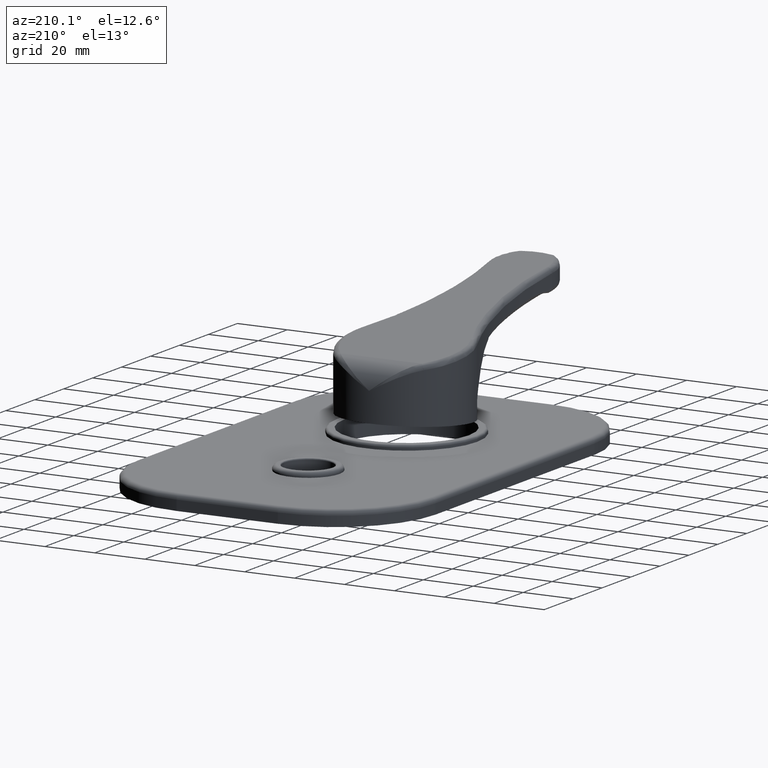
[diagram: clean part render]
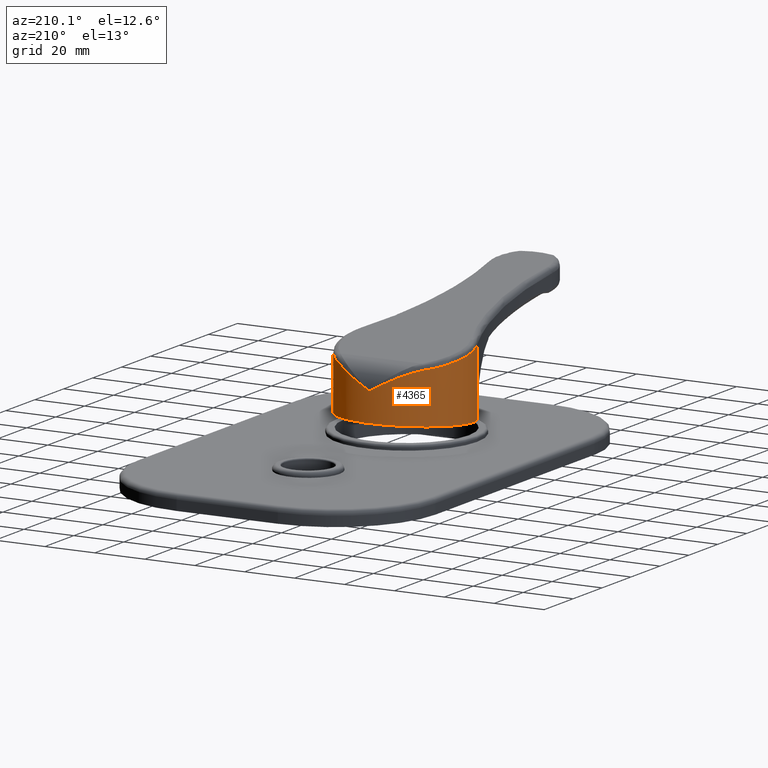
[diagram: same view with one face highlighted and labeled with its STEP entity id]
A machine part, auxiliary view. The second image highlights one B-rep face of the part: STEP entity #4365.
In plain terms, the highlighted cylindrical surface (partial cylindrical patch) has radius 25 mm, axis along (0, 0, 1).
Its self-contained STEP definition (entity closure, byte-faithful):
#594=CARTESIAN_POINT('',(0.E0,-2.5E1,6.3E0));
#595=CARTESIAN_POINT('',(-9.552643571929E-2,-2.5E1,6.3E0));
#596=CARTESIAN_POINT('',(-2.863583844922E-1,-2.499890686269E1,
6.305809344044E0));
#597=CARTESIAN_POINT('',(-5.726246135889E-1,-2.499398531317E1,
6.332058221227E0));
#598=CARTESIAN_POINT('',(-8.567163109883E-1,-2.498584865356E1,
6.375770643688E0));
#599=CARTESIAN_POINT('',(-1.137245276153E0,-2.497464077862E1,6.436643391130E0));
#600=CARTESIAN_POINT('',(-1.414690154978E0,-2.496044904935E1,6.514865119292E0));
#601=CARTESIAN_POINT('',(-1.687264418877E0,-2.494348464778E1,6.610139890455E0));
#602=CARTESIAN_POINT('',(-1.953178547106E0,-2.492404947775E1,6.721813293023E0));
#603=CARTESIAN_POINT('',(-2.212679671748E0,-2.490233038755E1,6.850050806764E0));
#604=CARTESIAN_POINT('',(-2.464488367030E0,-2.487864302561E1,6.994455925738E0));
#605=CARTESIAN_POINT('',(-2.706823859600E0,-2.485341192191E1,7.154074682008E0));
#606=CARTESIAN_POINT('',(-2.938927635325E0,-2.482700383352E1,7.328369254307E0));
#607=CARTESIAN_POINT('',(-3.160557260190E0,-2.479973090381E1,7.517302598208E0));
#608=CARTESIAN_POINT('',(-3.369992454785E0,-2.477210327282E1,7.719557842672E0));
#609=CARTESIAN_POINT('',(-3.566034594417E0,-2.474460766255E1,7.933806018663E0));
#610=CARTESIAN_POINT('',(-3.748903632286E0,-2.471752943433E1,8.160283024869E0));
#611=CARTESIAN_POINT('',(-3.917280046093E0,-2.469136936155E1,8.397503531182E0));
#612=CARTESIAN_POINT('',(-4.070047552427E0,-2.466661513507E1,8.643598167916E0));
#613=CARTESIAN_POINT('',(-4.207354530989E0,-2.464353673757E1,8.898541626792E0));
#614=CARTESIAN_POINT('',(-4.328688281555E0,-2.462248638389E1,9.161431863445E0));
#615=CARTESIAN_POINT('',(-4.433341277604E0,-2.460383417262E1,9.430547447383E0));
#616=CARTESIAN_POINT('',(-4.521147082969E0,-2.458783002328E1,9.705031338806E0));
#617=CARTESIAN_POINT('',(-4.592036304289E0,-2.457467237332E1,9.984679867718E0));
#618=CARTESIAN_POINT('',(-4.645455571616E0,-2.456461699869E1,1.026710642309E1));
#619=CARTESIAN_POINT('',(-4.681336852553E0,-2.455779587569E1,1.055052243391E1));
#620=CARTESIAN_POINT('',(-4.699909597008E0,-2.455424223801E1,1.083356538011E1));
#621=CARTESIAN_POINT('',(-4.701358763900E0,-2.455396981037E1,1.111719296996E1));
#622=CARTESIAN_POINT('',(-4.691111753376E0,-2.455591759400E1,1.130357685549E1));
#623=CARTESIAN_POINT('',(-4.683265686537E0,-2.455741389571E1,1.139626062082E1));
#625=CARTESIAN_POINT('',(4.683277608627E0,-2.455742015242E1,1.139611972935E1));
#626=CARTESIAN_POINT('',(4.691309685503E0,-2.455588837707E1,1.130116016073E1));
#627=CARTESIAN_POINT('',(4.701605367331E0,-2.455391857512E1,1.111100412543E1));
#628=CARTESIAN_POINT('',(4.699603203663E0,-2.455430204286E1,1.082353697259E1));
#629=CARTESIAN_POINT('',(4.680188872171E0,-2.455801473733E1,1.053847192194E1));
#630=CARTESIAN_POINT('',(4.643470455615E0,-2.456499289894E1,1.025463503067E1));
#631=CARTESIAN_POINT('',(4.589362555389E0,-2.457517234412E1,9.972727912436E0));
#632=CARTESIAN_POINT('',(4.517993894657E0,-2.458841004075E1,9.694149691644E0));
#633=CARTESIAN_POINT('',(4.429859840694E0,-2.460446167973E1,9.420795142178E0));
#634=CARTESIAN_POINT('',(4.324844616569E0,-2.462316237535E1,9.152432459390E0));
#635=CARTESIAN_POINT('',(4.203164613737E0,-2.464425228476E1,8.890193511151E0));
#636=CARTESIAN_POINT('',(4.065562832044E0,-2.466735524202E1,8.635885660569E0));
#637=CARTESIAN_POINT('',(3.912564311166E0,-2.469211744058E1,8.390436576871E0));
#638=CARTESIAN_POINT('',(3.744072139736E0,-2.471826186873E1,8.153934973245E0));
#639=CARTESIAN_POINT('',(3.561195034669E0,-2.474530453649E1,7.928204611603E0));
#640=CARTESIAN_POINT('',(3.365204186856E0,-2.477275399718E1,7.714661605429E0));
#641=CARTESIAN_POINT('',(3.155855861284E0,-2.480032925324E1,7.513056140342E0));
#642=CARTESIAN_POINT('',(2.934387099182E0,-2.482754024955E1,7.324753938566E0));
#643=CARTESIAN_POINT('',(2.702519106292E0,-2.485387958565E1,7.151061700266E0));
#644=CARTESIAN_POINT('',(2.460435478317E0,-2.487904321813E1,6.991977437221E0));
#645=CARTESIAN_POINT('',(2.208954152767E0,-2.490265985752E1,6.848079458426E0));
#646=CARTESIAN_POINT('',(1.949841007905E0,-2.492430939290E1,6.720303192687E0));
#647=CARTESIAN_POINT('',(1.684327180178E0,-2.494368165194E1,6.609023407197E0));
#648=CARTESIAN_POINT('',(1.412190631333E0,-2.496058889626E1,6.514088859156E0));
#649=CARTESIAN_POINT('',(1.135218639360E0,-2.497473116974E1,6.436149939841E0));
#650=CARTESIAN_POINT('',(8.551801346453E-1,-2.498589941970E1,6.375497020930E0));
#651=CARTESIAN_POINT('',(5.715860282316E-1,-2.499400715241E1,6.331941578789E0));
#652=CARTESIAN_POINT('',(2.858368441224E-1,-2.499891084516E1,6.305788199329E0));
#653=CARTESIAN_POINT('',(9.535166764944E-2,-2.5E1,6.3E0));
#654=CARTESIAN_POINT('',(0.E0,-2.5E1,6.3E0));
#656=CARTESIAN_POINT('',(4.683277608627E0,-2.455742015242E1,1.139611972935E1));
#657=CARTESIAN_POINT('',(5.013514053010E0,-2.449443969788E1,1.138016311499E1));
#658=CARTESIAN_POINT('',(5.671744904150E0,-2.435510448821E1,1.134487414922E1));
#659=CARTESIAN_POINT('',(6.650680177422E0,-2.410619840878E1,1.128177046201E1));
#660=CARTESIAN_POINT('',(7.619715225196E0,-2.381766179792E1,1.120866025335E1));
#661=CARTESIAN_POINT('',(8.577309264328E0,-2.348981892196E1,1.112560409348E1));
#662=CARTESIAN_POINT('',(9.521943008932E0,-2.312304609730E1,1.103263329655E1));
#663=CARTESIAN_POINT('',(1.045210736445E1,-2.271776871123E1,1.092991289567E1));
#664=CARTESIAN_POINT('',(1.136628810384E1,-2.227446954471E1,1.081762229749E1));
#665=CARTESIAN_POINT('',(1.226290973615E1,-2.179372585293E1,1.069577750718E1));
#666=CARTESIAN_POINT('',(1.314043780438E1,-2.127616762450E1,1.056458578042E1));
#667=CARTESIAN_POINT('',(1.399735753180E1,-2.072248517663E1,1.042430214515E1));
#668=CARTESIAN_POINT('',(1.483217043859E1,-2.013343355359E1,1.027505244193E1));
#669=CARTESIAN_POINT('',(1.564340788748E1,-1.950982496591E1,1.011698077193E1));
#670=CARTESIAN_POINT('',(1.642964750332E1,-1.885251351123E1,9.950395114671E0));
#671=CARTESIAN_POINT('',(1.718949439195E1,-1.816240681184E1,9.775582281830E0));
#672=CARTESIAN_POINT('',(1.792157598142E1,-1.744047100697E1,9.592594510266E0));
#673=CARTESIAN_POINT('',(1.862447443285E1,-1.668780864486E1,9.401809511334E0));
#674=CARTESIAN_POINT('',(1.929671927848E1,-1.590570808415E1,9.203664107605E0));
#675=CARTESIAN_POINT('',(1.993689427398E1,-1.509556211572E1,8.998369508292E0));
#676=CARTESIAN_POINT('',(2.054378697045E1,-1.425866305803E1,8.786246787486E0));
#677=CARTESIAN_POINT('',(2.111630479058E1,-1.339624067551E1,8.567754999810E0));
#678=CARTESIAN_POINT('',(2.165333082581E1,-1.250967159720E1,8.343048842571E0));
#679=CARTESIAN_POINT('',(2.215387279418E1,-1.160023933837E1,8.112796284946E0));
#680=CARTESIAN_POINT('',(2.246228628060E1,-1.098021930647E1,7.954890146773E0));
#681=CARTESIAN_POINT('',(2.261014712351E1,-1.066681592975E1,7.875480977744E0));
#683=DIRECTION('',(1.048727807061E-5,2.424673002159E-5,9.999999996511E-1));
#684=VECTOR('',#683,6.621503907967E0);
#685=CARTESIAN_POINT('',(2.261007768196E1,-1.066697647957E1,1.253977072088E0));
#686=LINE('',#685,#684);
#687=CARTESIAN_POINT('',(2.261007768196E1,-1.066697647957E1,1.253977072088E0));
#688=CARTESIAN_POINT('',(2.216568506880E1,-1.160892582428E1,1.171567182811E0));
#689=CARTESIAN_POINT('',(2.110492873402E1,-1.355449540384E1,1.001351900498E0));
#690=CARTESIAN_POINT('',(1.886218932679E1,-1.656793643E1,7.377099725047E-1));
#691=CARTESIAN_POINT('',(1.633667681291E1,-1.902747617450E1,5.225281273693E-1));
#692=CARTESIAN_POINT('',(1.387387666046E1,-2.084139018416E1,3.638312149138E-1));
#693=CARTESIAN_POINT('',(1.180183060351E1,-2.208530414116E1,2.550028452746E-1));
#694=CARTESIAN_POINT('',(9.507485798311E0,-2.317009465138E1,1.600959733293E-1));
#695=CARTESIAN_POINT('',(7.003344272729E0,-2.404991203295E1,8.312192646913E-2));
#696=CARTESIAN_POINT('',(4.313005106472E0,-2.467860843444E1,2.811811853922E-2));
#697=CARTESIAN_POINT('',(1.472202701770E0,-2.501282525261E1,
-1.122064210428E-3));
#698=CARTESIAN_POINT('',(-1.471383857599E0,-2.501580687486E1,
-1.382922356344E-3));
#699=CARTESIAN_POINT('',(-4.459674353300E0,-2.466128309081E1,
2.963388969824E-2));
#700=CARTESIAN_POINT('',(-7.427218389431E0,-2.393688190731E1,
9.301078109979E-2));
#701=CARTESIAN_POINT('',(-1.030549342601E1,-2.284641482915E1,
1.884142883870E-1));
#702=CARTESIAN_POINT('',(-1.302795342001E1,-2.141051886512E1,
3.140389072422E-1));
#703=CARTESIAN_POINT('',(-1.553508411873E1,-1.966541992124E1,
4.667152815624E-1));
#704=CARTESIAN_POINT('',(-1.777867595084E1,-1.765996162742E1,
6.421701474460E-1));
#705=CARTESIAN_POINT('',(-1.972468429879E1,-1.545139605295E1,
8.353945978657E-1));
#706=CARTESIAN_POINT('',(-2.135436092291E1,-1.310064836875E1,1.041058371044E0));
#707=CARTESIAN_POINT('',(-2.266370231448E1,-1.066778923487E1,1.253905965213E0));
#708=CARTESIAN_POINT('',(-2.366155862849E1,-8.208295851050E0,1.469083754314E0));
#709=CARTESIAN_POINT('',(-2.436690963131E1,-5.770430600773E0,1.682369326917E0));
#710=CARTESIAN_POINT('',(-2.480583079884E1,-3.393805302189E0,1.890297097992E0));
#711=CARTESIAN_POINT('',(-2.500858057313E1,-1.108996957115E0,2.090191926516E0));
#712=CARTESIAN_POINT('',(-2.500709388445E1,1.062033252614E0,2.280132458039E0));
#713=CARTESIAN_POINT('',(-2.483302349338E1,3.104998266572E0,2.458868736741E0));
#714=CARTESIAN_POINT('',(-2.451634039772E1,5.012072948736E0,2.625716151927E0));
#715=CARTESIAN_POINT('',(-2.415645311766E1,6.485857639570E0,2.754655604853E0));
#716=CARTESIAN_POINT('',(-2.382312242631E1,7.596271606829E0,2.851804238810E0));
#717=CARTESIAN_POINT('',(-2.355308602994E1,8.395346458102E0,2.921714229605E0));
#718=CARTESIAN_POINT('',(-2.331362440040E1,9.033315220126E0,2.977529263965E0));
#719=CARTESIAN_POINT('',(-2.311428412376E1,9.527963934867E0,3.020805418933E0));
#720=CARTESIAN_POINT('',(-2.296190399371E1,9.889479582742E0,3.052433939809E0));
#721=CARTESIAN_POINT('',(-2.280392060811E1,1.024858196030E1,3.083851326891E0));
#722=CARTESIAN_POINT('',(-2.258146702716E1,1.073327598874E1,3.126256559658E0));
#723=CARTESIAN_POINT('',(-2.228244272140E1,1.134559165725E1,3.179827239152E0));
#724=CARTESIAN_POINT('',(-2.188736526075E1,1.209081247915E1,3.245025612891E0));
#725=CARTESIAN_POINT('',(-2.130955544738E1,1.309593155073E1,3.332962137148E0));
#726=CARTESIAN_POINT('',(-2.048596606702E1,1.437000403762E1,3.444429036261E0));
#727=CARTESIAN_POINT('',(-1.931786389619E1,1.591038040232E1,3.579194505736E0));
#728=CARTESIAN_POINT('',(-1.795304023686E1,1.744049900172E1,3.713062537034E0));
#729=CARTESIAN_POINT('',(-1.637658897659E1,1.893320654367E1,3.843657524914E0));
#730=CARTESIAN_POINT('',(-1.457714377224E1,2.035568803783E1,3.968108529729E0));
#731=CARTESIAN_POINT('',(-1.254872043745E1,2.166965088969E1,4.083065383561E0));
#732=CARTESIAN_POINT('',(-1.029274689671E1,2.283210106031E1,4.184766595403E0));
#733=CARTESIAN_POINT('',(-7.820089728348E0,2.379687640005E1,4.269173500480E0));
#734=CARTESIAN_POINT('',(-5.152776195944E0,2.451702705431E1,4.332178518759E0));
#735=CARTESIAN_POINT('',(-2.325035503240E0,2.494800634481E1,4.369884320892E0));
#736=CARTESIAN_POINT('',(6.167342991584E-1,2.505145109672E1,4.378934563985E0));
#737=CARTESIAN_POINT('',(3.615383762166E0,2.479912457139E1,4.356858853512E0));
#738=CARTESIAN_POINT('',(6.605922791521E0,2.417642803352E1,4.302379965632E0));
#739=CARTESIAN_POINT('',(9.519738704837E0,2.318483211694E1,4.215626564132E0));
#740=CARTESIAN_POINT('',(1.228961987967E1,2.184269057744E1,4.098204394579E0));
#741=CARTESIAN_POINT('',(1.485485034221E1,2.018417697934E1,3.953103256441E0));
#742=CARTESIAN_POINT('',(1.716558157517E1,1.825646113690E1,3.784449973728E0));
#743=CARTESIAN_POINT('',(1.918583475324E1,1.611559967033E1,3.597148865224E0));
#744=CARTESIAN_POINT('',(2.089479326136E1,1.382184292611E1,3.396471153219E0));
#745=CARTESIAN_POINT('',(2.228640538825E1,1.143508787311E1,3.187657143468E0));
#746=CARTESIAN_POINT('',(2.336762387122E1,9.011089111325E0,2.975584731411E0));
#747=CARTESIAN_POINT('',(2.415576580885E1,6.598700083328E0,2.764528039447E0));
#748=CARTESIAN_POINT('',(2.467555598624E1,4.238506242555E0,2.558037834656E0));
#749=CARTESIAN_POINT('',(2.504965494216E1,1.202766036858E0,2.292444981247E0));
#750=CARTESIAN_POINT('',(2.499772873339E1,-2.322124441069E0,1.984057024258E0));
#751=CARTESIAN_POINT('',(2.434905530486E1,-6.022114934303E0,1.660349800946E0));
#752=CARTESIAN_POINT('',(2.366420542197E1,-8.129583944422E0,1.475970153829E0));
#753=CARTESIAN_POINT('',(2.328510833849E1,-9.099655469575E0,1.391099892569E0));
#755=DIRECTION('',(4.849125530609E-8,-1.894832644353E-8,-1.E0));
#756=VECTOR('',#755,2.636952519557E1);
#757=CARTESIAN_POINT('',(2.328510705979E1,-9.099654969917E0,2.776062508814E1));
#758=LINE('',#757,#756);
#759=CARTESIAN_POINT('',(1.769067749856E1,1.766464307593E1,2.386069987009E1));
#760=CARTESIAN_POINT('',(1.793291176755E1,1.742204065212E1,2.389605100883E1));
#761=CARTESIAN_POINT('',(1.840756634041E1,1.692675322529E1,2.396822970818E1));
#762=CARTESIAN_POINT('',(1.908879138428E1,1.615461318829E1,2.408074151882E1));
#763=CARTESIAN_POINT('',(1.973797698865E1,1.535467879520E1,2.419729569655E1));
#764=CARTESIAN_POINT('',(2.035389553434E1,1.452835405205E1,2.431769894968E1));
#765=CARTESIAN_POINT('',(2.093546826363E1,1.367701037293E1,2.444175379988E1));
#766=CARTESIAN_POINT('',(2.148169255639E1,1.280201772897E1,2.456925219817E1));
#767=CARTESIAN_POINT('',(2.199160737011E1,1.190480350905E1,2.469998683308E1));
#768=CARTESIAN_POINT('',(2.246431006398E1,1.098682280331E1,2.483375234641E1));
#769=CARTESIAN_POINT('',(2.289890323609E1,1.004967792160E1,2.497030876424E1));
#770=CARTESIAN_POINT('',(2.329455988114E1,9.095026474567E0,2.510941253657E1));
#771=CARTESIAN_POINT('',(2.365052991342E1,8.124569710289E0,2.525081874184E1));
#772=CARTESIAN_POINT('',(2.396615549320E1,7.140010165761E0,2.539428466222E1));
#773=CARTESIAN_POINT('',(2.424086993486E1,6.143023114654E0,2.553955991902E1));
#774=CARTESIAN_POINT('',(2.447417235006E1,5.135322529293E0,2.568639426191E1));
#775=CARTESIAN_POINT('',(2.466563622519E1,4.118637491875E0,2.583453832564E1));
#776=CARTESIAN_POINT('',(2.481490773486E1,3.094715419209E0,2.598373908800E1));
#777=CARTESIAN_POINT('',(2.492170635678E1,2.065325872627E0,2.613373563394E1));
#778=CARTESIAN_POINT('',(2.498582765060E1,1.032248213127E0,2.628426757059E1));
#779=CARTESIAN_POINT('',(2.500714252960E1,-2.726832448576E-3,2.643507731463E1));
#780=CARTESIAN_POINT('',(2.498560133374E1,-1.037747527385E0,2.658589477628E1));
#781=CARTESIAN_POINT('',(2.492124095877E1,-2.070964372617E0,2.673644952510E1));
#782=CARTESIAN_POINT('',(2.481418571663E1,-3.100522525864E0,2.688646893262E1));
#783=CARTESIAN_POINT('',(2.466463746664E1,-4.124635889955E0,2.703569627832E1));
#784=CARTESIAN_POINT('',(2.447286765160E1,-5.141558067577E0,2.718387672514E1));
#785=CARTESIAN_POINT('',(2.423922031314E1,-6.149552783524E0,2.733075430945E1));
#786=CARTESIAN_POINT('',(2.396411007219E1,-7.146891964133E0,2.747607754129E1));
#787=CARTESIAN_POINT('',(2.364806597232E1,-8.131761670463E0,2.761958768122E1));
#788=CARTESIAN_POINT('',(2.341049536257E1,-8.778784514776E0,2.771386992685E1));
#789=CARTESIAN_POINT('',(2.328510705979E1,-9.099654969917E0,2.776062508814E1));
#791=CARTESIAN_POINT('',(2.876611873338E-8,2.5E1,1.595919312171E1));
#792=CARTESIAN_POINT('',(3.005376905132E-1,2.499996149917E1,1.612228128043E1));
#793=CARTESIAN_POINT('',(9.042514729355E-1,2.498922321229E1,1.644984851144E1));
#794=CARTESIAN_POINT('',(1.822131353756E0,2.493917788565E1,1.694697235434E1));
#795=CARTESIAN_POINT('',(2.736749833487E0,2.485535349373E1,1.744039436785E1));
#796=CARTESIAN_POINT('',(3.635279765643E0,2.473969424807E1,1.792234340358E1));
#797=CARTESIAN_POINT('',(4.515139574450E0,2.459430856585E1,1.839070844095E1));
#798=CARTESIAN_POINT('',(5.402560974602E0,2.441502317894E1,1.885849484064E1));
#799=CARTESIAN_POINT('',(6.318493581540E0,2.419488974325E1,1.933536236386E1));
#800=CARTESIAN_POINT('',(7.285684789635E0,2.392216342144E1,1.983095336046E1));
#801=CARTESIAN_POINT('',(8.267064087306E0,2.360107615294E1,2.032343899100E1));
#802=CARTESIAN_POINT('',(9.221638884775E0,2.324422761150E1,2.079042256813E1));
#803=CARTESIAN_POINT('',(1.012284911412E1,2.286559340235E1,2.121863247175E1));
#804=CARTESIAN_POINT('',(1.098349351131E1,2.246457426887E1,2.161400504252E1));
#805=CARTESIAN_POINT('',(1.181204967231E1,2.203994588743E1,2.198004251494E1));
#806=CARTESIAN_POINT('',(1.260902851911E1,2.159361481720E1,2.231639959757E1));
#807=CARTESIAN_POINT('',(1.337027159310E1,2.113038337829E1,2.262077113248E1));
#808=CARTESIAN_POINT('',(1.409371045746E1,2.065454107686E1,2.289243236767E1));
#809=CARTESIAN_POINT('',(1.478043750490E1,2.016848601159E1,2.313181782193E1));
#810=CARTESIAN_POINT('',(1.543145790359E1,1.967450600351E1,2.333947044422E1));
#811=CARTESIAN_POINT('',(1.604762835264E1,1.917490670072E1,2.351601680637E1));
#812=CARTESIAN_POINT('',(1.662974458713E1,1.867197615023E1,2.366196184172E1));
#813=CARTESIAN_POINT('',(1.717884894526E1,1.816773845103E1,2.377815526354E1));
#814=CARTESIAN_POINT('',(1.752352394150E1,1.783203870606E1,2.383630787352E1));
#815=CARTESIAN_POINT('',(1.769067749856E1,1.766464307593E1,2.386069987009E1));
#817=CARTESIAN_POINT('',(-1.769067826852E1,1.766464384456E1,2.386069987010E1));
#818=CARTESIAN_POINT('',(-1.752345467743E1,1.783211362424E1,2.383629706924E1));
#819=CARTESIAN_POINT('',(-1.717863468141E1,1.816794004644E1,2.377812168815E1));
#820=CARTESIAN_POINT('',(-1.662948908316E1,1.867220678702E1,2.366190565204E1));
#821=CARTESIAN_POINT('',(-1.604705062004E1,1.917539762244E1,2.351583878540E1));
#822=CARTESIAN_POINT('',(-1.543036403272E1,1.967537392398E1,2.333915293998E1));
#823=CARTESIAN_POINT('',(-1.477866210057E1,2.016979887404E1,2.313121923315E1));
#824=CARTESIAN_POINT('',(-1.409121327826E1,2.065625443996E1,2.289151673607E1));
#825=CARTESIAN_POINT('',(-1.336758017368E1,2.113207615552E1,2.261973381899E1));
#826=CARTESIAN_POINT('',(-1.260757694107E1,2.159443626151E1,2.231575501983E1));
#827=CARTESIAN_POINT('',(-1.181129305676E1,2.204036887666E1,2.197972519546E1));
#828=CARTESIAN_POINT('',(-1.097918589201E1,2.246676773743E1,2.161209333794E1));
#829=CARTESIAN_POINT('',(-1.011207450743E1,2.287045066792E1,2.121358664622E1));
#830=CARTESIAN_POINT('',(-9.211160179187E0,2.324820375707E1,2.078533482018E1));
#831=CARTESIAN_POINT('',(-8.278153373623E0,2.359679773053E1,2.032879725827E1));
#832=CARTESIAN_POINT('',(-7.315095455539E0,2.391312234440E1,1.984583694287E1));
#833=CARTESIAN_POINT('',(-6.324646261463E0,2.419415579692E1,1.933873334170E1));
#834=CARTESIAN_POINT('',(-5.309736224E0,2.443714537334E1,1.881010373199E1));
#835=CARTESIAN_POINT('',(-4.273804387283E0,2.463959535908E1,1.826293350145E1));
#836=CARTESIAN_POINT('',(-3.220582948073E0,2.479937116638E1,1.770053673531E1));
#837=CARTESIAN_POINT('',(-2.154585275719E0,2.491471336586E1,1.712670636185E1));
#838=CARTESIAN_POINT('',(-1.079670631890E0,2.498443966464E1,1.654501490425E1));
#839=CARTESIAN_POINT('',(-3.603815093860E-1,2.499998237336E1,1.615474118125E1));
#840=CARTESIAN_POINT('',(2.876611873338E-8,2.5E1,1.595919312171E1));
#842=CARTESIAN_POINT('',(-2.264295986639E1,-1.059697473180E1,2.797880560712E1));
#843=CARTESIAN_POINT('',(-2.278688051056E1,-1.028944807720E1,2.793399429645E1));
#844=CARTESIAN_POINT('',(-2.306226297314E1,-9.668430047782E0,2.784349854527E1));
#845=CARTESIAN_POINT('',(-2.343716109501E1,-8.720430001035E0,2.770536660699E1));
#846=CARTESIAN_POINT('',(-2.377322600343E1,-7.757607005463E0,2.756507085446E1));
#847=CARTESIAN_POINT('',(-2.406984070515E1,-6.781570044751E0,2.742284656437E1));
#848=CARTESIAN_POINT('',(-2.432646674194E1,-5.793973057650E0,2.727893971881E1));
#849=CARTESIAN_POINT('',(-2.454263443789E1,-4.796493407923E0,2.713359480160E1));
#850=CARTESIAN_POINT('',(-2.471794899101E1,-3.790827901375E0,2.698705718484E1));
#851=CARTESIAN_POINT('',(-2.485209081414E1,-2.778679687186E0,2.683957188754E1));
#852=CARTESIAN_POINT('',(-2.494481281691E1,-1.761776830667E0,2.669139463865E1));
#853=CARTESIAN_POINT('',(-2.499594374939E1,-7.418681133419E-1,
2.654278028974E1));
#854=CARTESIAN_POINT('',(-2.500539071796E1,2.792963135103E-1,2.639398465512E1));
#855=CARTESIAN_POINT('',(-2.497313779724E1,1.299969977740E0,2.624525809332E1));
#856=CARTESIAN_POINT('',(-2.489924797091E1,2.318381387163E0,2.609686081644E1));
#857=CARTESIAN_POINT('',(-2.478386645666E1,3.332756224083E0,2.594905159044E1));
#858=CARTESIAN_POINT('',(-2.462721887391E1,4.341335933425E0,2.580208997390E1));
#859=CARTESIAN_POINT('',(-2.442961099931E1,5.342376966406E0,2.565622503972E1));
#860=CARTESIAN_POINT('',(-2.419141394958E1,6.334204443085E0,2.551170118021E1));
#861=CARTESIAN_POINT('',(-2.391306881236E1,7.315159269429E0,2.536876078977E1));
#862=CARTESIAN_POINT('',(-2.359508147582E1,8.283616374668E0,2.522764677022E1));
#863=CARTESIAN_POINT('',(-2.323803347420E1,9.237947466198E0,2.508858976435E1));
#864=CARTESIAN_POINT('',(-2.284260355269E1,1.017649121916E1,2.495182986966E1));
#865=CARTESIAN_POINT('',(-2.240954158209E1,1.109763594369E1,2.481760235717E1));
#866=CARTESIAN_POINT('',(-2.193968037771E1,1.199979272256E1,2.468614686954E1));
#867=CARTESIAN_POINT('',(-2.143386745802E1,1.288151792050E1,2.455766831455E1));
#868=CARTESIAN_POINT('',(-2.089295126709E1,1.374148499113E1,2.443235792271E1));
#869=CARTESIAN_POINT('',(-2.031783532264E1,1.457837775177E1,2.431040917305E1));
#870=CARTESIAN_POINT('',(-1.970944474818E1,1.539094247301E1,2.419201623378E1));
#871=CARTESIAN_POINT('',(-1.906881861078E1,1.617785809326E1,2.407735816233E1));
#872=CARTESIAN_POINT('',(-1.839709907637E1,1.693782120580E1,2.396661880176E1));
#873=CARTESIAN_POINT('',(-1.792933507955E1,1.742562158122E1,2.389552946335E1));
#874=CARTESIAN_POINT('',(-1.769067826852E1,1.766464384456E1,2.386069987010E1));
#876=DIRECTION('',(9.973490168611E-7,-9.476364477360E-7,9.999999999991E-1));
#877=VECTOR('',#876,1.974266602462E1);
#878=CARTESIAN_POINT('',(-2.264297955672E1,-1.059695602294E1,8.236139582524E0));
#879=LINE('',#878,#877);
#880=CARTESIAN_POINT('',(-2.261020394337E1,-1.066668683973E1,7.876024298506E0));
#881=CARTESIAN_POINT('',(-2.261119080553E1,-1.066459607708E1,7.883795589546E0));
#882=CARTESIAN_POINT('',(-2.261372982756E1,-1.065924332130E1,7.899825743705E0));
#883=CARTESIAN_POINT('',(-2.261881920338E1,-1.064842786362E1,7.925266700656E0));
#884=CARTESIAN_POINT('',(-2.262418329960E1,-1.063702938550E1,7.953938250532E0));
#885=CARTESIAN_POINT('',(-2.262907278262E1,-1.062662228098E1,7.987029518360E0));
#886=CARTESIAN_POINT('',(-2.263353374886E1,-1.061711748982E1,8.025038021125E0));
#887=CARTESIAN_POINT('',(-2.263741102718E1,-1.060884745045E1,8.068390488432E0));
#888=CARTESIAN_POINT('',(-2.264046247540E1,-1.060233326822E1,8.117369673622E0));
#889=CARTESIAN_POINT('',(-2.264245627350E1,-1.059807421978E1,8.172602934920E0));
#890=CARTESIAN_POINT('',(-2.264297475517E1,-1.059696626664E1,8.214198487133E0));
#891=CARTESIAN_POINT('',(-2.264297955672E1,-1.059695602294E1,8.236139582524E0));
#893=CARTESIAN_POINT('',(-2.261020394337E1,-1.066668683973E1,7.876024298506E0));
#894=CARTESIAN_POINT('',(-2.246221654695E1,-1.098037755619E1,7.955530850534E0));
#895=CARTESIAN_POINT('',(-2.215340948554E1,-1.160115245089E1,8.112859136723E0));
#896=CARTESIAN_POINT('',(-2.165244571907E1,-1.251122513148E1,8.343409430333E0));
#897=CARTESIAN_POINT('',(-2.111488054323E1,-1.339850830824E1,8.568279788751E0));
#898=CARTESIAN_POINT('',(-2.054181550988E1,-1.426152053075E1,8.787032461313E0));
#899=CARTESIAN_POINT('',(-1.993443758371E1,-1.509881593112E1,8.999175042485E0));
#900=CARTESIAN_POINT('',(-1.929401784256E1,-1.590898236869E1,9.204455381591E0));
#901=CARTESIAN_POINT('',(-1.862188084202E1,-1.669069120362E1,9.402600515230E0));
#902=CARTESIAN_POINT('',(-1.791933641177E1,-1.744275695279E1,9.593198958003E0));
#903=CARTESIAN_POINT('',(-1.718776591625E1,-1.816402573121E1,9.775912005915E0));
#904=CARTESIAN_POINT('',(-1.642854994921E1,-1.885345310170E1,9.950657762461E0));
#905=CARTESIAN_POINT('',(-1.564296656742E1,-1.951016441680E1,1.011711581500E1));
#906=CARTESIAN_POINT('',(-1.483231241954E1,-2.013331779496E1,1.027497669981E1));
#907=CARTESIAN_POINT('',(-1.399799348793E1,-2.072204697176E1,1.042417252072E1));
#908=CARTESIAN_POINT('',(-1.314148869438E1,-2.127551205223E1,1.056446617472E1));
#909=CARTESIAN_POINT('',(-1.226428796593E1,-2.179294589397E1,1.069558318876E1));
#910=CARTESIAN_POINT('',(-1.136789520767E1,-2.227364689994E1,1.081736341131E1));
#911=CARTESIAN_POINT('',(-1.045383722423E1,-2.271697239132E1,1.092973728959E1));
#912=CARTESIAN_POINT('',(-9.523651932370E0,-2.312234425674E1,1.103248370415E1));
#913=CARTESIAN_POINT('',(-8.578859137793E0,-2.348925659445E1,1.112542635984E1));
#914=CARTESIAN_POINT('',(-7.620994897667E0,-2.381725749544E1,1.120855033600E1));
#915=CARTESIAN_POINT('',(-6.651597084664E0,-2.410595093019E1,1.128175251185E1));
#916=CARTESIAN_POINT('',(-5.672230491036E0,-2.435499967208E1,1.134477176143E1));
#917=CARTESIAN_POINT('',(-5.013670231145E0,-2.449440664404E1,1.138029274030E1));
#918=CARTESIAN_POINT('',(-4.683265686537E0,-2.455741389571E1,1.139626062082E1));
#1011=CARTESIAN_POINT('',(2.261021362131E1,-1.066666243285E1,7.874928159655E0));
#1168=CARTESIAN_POINT('',(2.876611873338E-8,2.5E1,1.595919312171E1));
#3561=VERTEX_POINT('',#1011);
#3600=VERTEX_POINT('',#880);
#3601=VERTEX_POINT('',#891);
#3604=VERTEX_POINT('',#1168);
#3605=VERTEX_POINT('',#817);
#3606=VERTEX_POINT('',#842);
#3633=CARTESIAN_POINT('',(2.328510833849E1,-9.099655469575E0,2.776062508814E1));
#3634=VERTEX_POINT('',#3633);
#3635=VERTEX_POINT('',#759);
#3641=VERTEX_POINT('',#687);
#3642=VERTEX_POINT('',#753);
#3715=VERTEX_POINT('',#594);
#3716=VERTEX_POINT('',#623);
#3717=VERTEX_POINT('',#625);
#4333=CARTESIAN_POINT('',(0.E0,0.E0,-2.579950844053E-1));
#4334=DIRECTION('',(0.E0,0.E0,1.E0));
#4335=DIRECTION('',(1.E0,0.E0,0.E0));
#4336=AXIS2_PLACEMENT_3D('',#4333,#4334,#4335);
#4337=CYLINDRICAL_SURFACE('',#4336,2.5E1);
#4339=ORIENTED_EDGE('',*,*,#4338,.F.);
#4341=ORIENTED_EDGE('',*,*,#4340,.F.);
#4343=ORIENTED_EDGE('',*,*,#4342,.T.);
#4345=ORIENTED_EDGE('',*,*,#4344,.F.);
#4346=ORIENTED_EDGE('',*,*,#4310,.T.);
#4348=ORIENTED_EDGE('',*,*,#4347,.F.);
#4350=ORIENTED_EDGE('',*,*,#4349,.F.);
#4352=ORIENTED_EDGE('',*,*,#4351,.F.);
#4354=ORIENTED_EDGE('',*,*,#4353,.F.);
#4356=ORIENTED_EDGE('',*,*,#4355,.F.);
#4358=ORIENTED_EDGE('',*,*,#4357,.F.);
#4360=ORIENTED_EDGE('',*,*,#4359,.F.);
#4362=ORIENTED_EDGE('',*,*,#4361,.T.);
#4363=EDGE_LOOP('',(#4339,#4341,#4343,#4345,#4346,#4348,#4350,#4352,#4354,#4356,
#4358,#4360,#4362));
#4364=FACE_OUTER_BOUND('',#4363,.F.);
#4365=ADVANCED_FACE('',(#4364),#4337,.T.);
#624=B_SPLINE_CURVE_WITH_KNOTS('',3,(#594,#595,#596,#597,#598,#599,#600,#601,
#602,#603,#604,#605,#606,#607,#608,#609,#610,#611,#612,#613,#614,#615,#616,#617,
#618,#619,#620,#621,#622,#623),.UNSPECIFIED.,.F.,.F.,(4,1,1,1,1,1,1,1,1,1,1,1,1,
1,1,1,1,1,1,1,1,1,1,1,1,1,1,4),(0.E0,3.703703703704E-2,7.407407407407E-2,
1.111111111111E-1,1.481481481481E-1,1.851851851852E-1,2.222222222222E-1,
2.592592592593E-1,2.962962962963E-1,3.333333333333E-1,3.703703703704E-1,
4.074074074074E-1,4.444444444444E-1,4.814814814815E-1,5.185185185185E-1,
5.555555555556E-1,5.925925925926E-1,6.296296296296E-1,6.666666666667E-1,
7.037037037037E-1,7.407407407407E-1,7.777777777778E-1,8.148148148148E-1,
8.518518518519E-1,8.888888888889E-1,9.259259259259E-1,9.629629629630E-1,1.E0),
.UNSPECIFIED.);
#655=B_SPLINE_CURVE_WITH_KNOTS('',3,(#625,#626,#627,#628,#629,#630,#631,#632,
#633,#634,#635,#636,#637,#638,#639,#640,#641,#642,#643,#644,#645,#646,#647,#648,
#649,#650,#651,#652,#653,#654),.UNSPECIFIED.,.F.,.F.,(4,1,1,1,1,1,1,1,1,1,1,1,1,
1,1,1,1,1,1,1,1,1,1,1,1,1,1,4),(0.E0,3.703703703704E-2,7.407407407407E-2,
1.111111111111E-1,1.481481481481E-1,1.851851851852E-1,2.222222222222E-1,
2.592592592593E-1,2.962962962963E-1,3.333333333333E-1,3.703703703704E-1,
4.074074074074E-1,4.444444444444E-1,4.814814814815E-1,5.185185185185E-1,
5.555555555556E-1,5.925925925926E-1,6.296296296296E-1,6.666666666667E-1,
7.037037037037E-1,7.407407407407E-1,7.777777777778E-1,8.148148148148E-1,
8.518518518519E-1,8.888888888889E-1,9.259259259259E-1,9.629629629630E-1,1.E0),
.UNSPECIFIED.);
#682=B_SPLINE_CURVE_WITH_KNOTS('',3,(#656,#657,#658,#659,#660,#661,#662,#663,
#664,#665,#666,#667,#668,#669,#670,#671,#672,#673,#674,#675,#676,#677,#678,#679,
#680,#681),.UNSPECIFIED.,.F.,.F.,(4,1,1,1,1,1,1,1,1,1,1,1,1,1,1,1,1,1,1,1,1,1,1,
4),(0.E0,4.347826086957E-2,8.695652173913E-2,1.304347826087E-1,
1.739130434783E-1,2.173913043478E-1,2.608695652174E-1,3.043478260870E-1,
3.478260869565E-1,3.913043478261E-1,4.347826086957E-1,4.782608695652E-1,
5.217391304348E-1,5.652173913043E-1,6.086956521739E-1,6.521739130435E-1,
6.956521739130E-1,7.391304347826E-1,7.826086956522E-1,8.260869565217E-1,
8.695652173913E-1,9.130434782609E-1,9.565217391304E-1,1.E0),.UNSPECIFIED.);
#754=B_SPLINE_CURVE_WITH_KNOTS('',3,(#687,#688,#689,#690,#691,#692,#693,#694,
#695,#696,#697,#698,#699,#700,#701,#702,#703,#704,#705,#706,#707,#708,#709,#710,
#711,#712,#713,#714,#715,#716,#717,#718,#719,#720,#721,#722,#723,#724,#725,#726,
#727,#728,#729,#730,#731,#732,#733,#734,#735,#736,#737,#738,#739,#740,#741,#742,
#743,#744,#745,#746,#747,#748,#749,#750,#751,#752,#753),.UNSPECIFIED.,.F.,.F.,
(4,1,1,1,1,1,1,1,1,1,1,1,1,1,1,1,1,1,1,1,1,1,1,1,1,1,1,1,1,1,1,1,1,1,1,1,1,1,1,
1,1,1,1,1,1,1,1,1,1,1,1,1,1,1,1,1,1,1,1,1,1,1,1,1,4),(0.E0,3.125E-2,6.25E-2,
9.375E-2,1.09375E-1,1.25E-1,1.40625E-1,1.5625E-1,1.71875E-1,1.875E-1,2.03125E-1,
2.1875E-1,2.34375E-1,2.5E-1,2.65625E-1,2.8125E-1,2.96875E-1,3.125E-1,3.28125E-1,
3.4375E-1,3.59375E-1,3.75E-1,3.90625E-1,4.0625E-1,4.21875E-1,4.375E-1,
4.53125E-1,4.6875E-1,4.765625E-1,4.84375E-1,4.921875E-1,4.9609375E-1,5.E-1,
5.0390625E-1,5.078125E-1,5.15625E-1,5.234375E-1,5.3125E-1,5.46875E-1,5.625E-1,
5.78125E-1,5.9375E-1,6.09375E-1,6.25E-1,6.40625E-1,6.5625E-1,6.71875E-1,
6.875E-1,7.03125E-1,7.1875E-1,7.34375E-1,7.5E-1,7.65625E-1,7.8125E-1,7.96875E-1,
8.125E-1,8.28125E-1,8.4375E-1,8.59375E-1,8.75E-1,8.90625E-1,9.0625E-1,9.375E-1,
9.6875E-1,1.E0),.UNSPECIFIED.);
#790=B_SPLINE_CURVE_WITH_KNOTS('',3,(#759,#760,#761,#762,#763,#764,#765,#766,
#767,#768,#769,#770,#771,#772,#773,#774,#775,#776,#777,#778,#779,#780,#781,#782,
#783,#784,#785,#786,#787,#788,#789),.UNSPECIFIED.,.F.,.F.,(4,1,1,1,1,1,1,1,1,1,
1,1,1,1,1,1,1,1,1,1,1,1,1,1,1,1,1,1,4),(0.E0,3.571428571429E-2,
7.142857142857E-2,1.071428571429E-1,1.428571428571E-1,1.785714285714E-1,
2.142857142857E-1,2.5E-1,2.857142857143E-1,3.214285714286E-1,3.571428571429E-1,
3.928571428571E-1,4.285714285714E-1,4.642857142857E-1,5.E-1,5.357142857143E-1,
5.714285714286E-1,6.071428571429E-1,6.428571428571E-1,6.785714285714E-1,
7.142857142857E-1,7.5E-1,7.857142857143E-1,8.214285714286E-1,8.571428571429E-1,
8.928571428571E-1,9.285714285714E-1,9.642857142857E-1,1.E0),.UNSPECIFIED.);
#816=B_SPLINE_CURVE_WITH_KNOTS('',3,(#791,#792,#793,#794,#795,#796,#797,#798,
#799,#800,#801,#802,#803,#804,#805,#806,#807,#808,#809,#810,#811,#812,#813,#814,
#815),.UNSPECIFIED.,.F.,.F.,(4,1,1,1,1,1,1,1,1,1,1,1,1,1,1,1,1,1,1,1,1,1,4),(
0.E0,4.545454545455E-2,9.090909090909E-2,1.363636363636E-1,1.818181818182E-1,
2.272727272727E-1,2.727272727273E-1,3.181818181818E-1,3.636363636364E-1,
4.090909090909E-1,4.545454545455E-1,5.E-1,5.454545454545E-1,5.909090909091E-1,
6.363636363636E-1,6.818181818182E-1,7.272727272727E-1,7.727272727273E-1,
8.181818181818E-1,8.636363636364E-1,9.090909090909E-1,9.545454545455E-1,1.E0),
.UNSPECIFIED.);
#841=B_SPLINE_CURVE_WITH_KNOTS('',3,(#817,#818,#819,#820,#821,#822,#823,#824,
#825,#826,#827,#828,#829,#830,#831,#832,#833,#834,#835,#836,#837,#838,#839,
#840),.UNSPECIFIED.,.F.,.F.,(4,1,1,1,1,1,1,1,1,1,1,1,1,1,1,1,1,1,1,1,1,4),(0.E0,
4.761904761905E-2,9.523809523810E-2,1.428571428571E-1,1.904761904762E-1,
2.380952380952E-1,2.857142857143E-1,3.333333333333E-1,3.809523809524E-1,
4.285714285714E-1,4.761904761905E-1,5.238095238095E-1,5.714285714286E-1,
6.190476190476E-1,6.666666666667E-1,7.142857142857E-1,7.619047619048E-1,
8.095238095238E-1,8.571428571429E-1,9.047619047619E-1,9.523809523810E-1,1.E0),
.UNSPECIFIED.);
#875=B_SPLINE_CURVE_WITH_KNOTS('',3,(#842,#843,#844,#845,#846,#847,#848,#849,
#850,#851,#852,#853,#854,#855,#856,#857,#858,#859,#860,#861,#862,#863,#864,#865,
#866,#867,#868,#869,#870,#871,#872,#873,#874),.UNSPECIFIED.,.F.,.F.,(4,1,1,1,1,
1,1,1,1,1,1,1,1,1,1,1,1,1,1,1,1,1,1,1,1,1,1,1,1,1,4),(0.E0,3.333333333333E-2,
6.666666666667E-2,1.E-1,1.333333333333E-1,1.666666666667E-1,2.E-1,
2.333333333333E-1,2.666666666667E-1,3.E-1,3.333333333333E-1,3.666666666667E-1,
4.E-1,4.333333333333E-1,4.666666666667E-1,5.E-1,5.333333333333E-1,
5.666666666667E-1,6.E-1,6.333333333333E-1,6.666666666667E-1,7.E-1,
7.333333333333E-1,7.666666666667E-1,8.E-1,8.333333333333E-1,8.666666666667E-1,
9.E-1,9.333333333333E-1,9.666666666667E-1,1.E0),.UNSPECIFIED.);
#892=B_SPLINE_CURVE_WITH_KNOTS('',3,(#880,#881,#882,#883,#884,#885,#886,#887,
#888,#889,#890,#891),.UNSPECIFIED.,.F.,.F.,(4,1,1,1,1,1,1,1,1,4),(0.E0,
1.111111111111E-1,2.222222222222E-1,3.333333333333E-1,4.444444444444E-1,
5.555555555556E-1,6.666666666667E-1,7.777777777778E-1,8.888888888889E-1,1.E0),
.UNSPECIFIED.);
#919=B_SPLINE_CURVE_WITH_KNOTS('',3,(#893,#894,#895,#896,#897,#898,#899,#900,
#901,#902,#903,#904,#905,#906,#907,#908,#909,#910,#911,#912,#913,#914,#915,#916,
#917,#918),.UNSPECIFIED.,.F.,.F.,(4,1,1,1,1,1,1,1,1,1,1,1,1,1,1,1,1,1,1,1,1,1,1,
4),(0.E0,4.347826086957E-2,8.695652173913E-2,1.304347826087E-1,
1.739130434783E-1,2.173913043478E-1,2.608695652174E-1,3.043478260870E-1,
3.478260869565E-1,3.913043478261E-1,4.347826086957E-1,4.782608695652E-1,
5.217391304348E-1,5.652173913043E-1,6.086956521739E-1,6.521739130435E-1,
6.956521739130E-1,7.391304347826E-1,7.826086956522E-1,8.260869565217E-1,
8.695652173913E-1,9.130434782609E-1,9.565217391304E-1,1.E0),.UNSPECIFIED.);
#4310=EDGE_CURVE('',#3641,#3642,#754,.T.);
#4338=EDGE_CURVE('',#3715,#3716,#624,.T.);
#4340=EDGE_CURVE('',#3717,#3715,#655,.T.);
#4342=EDGE_CURVE('',#3717,#3561,#682,.T.);
#4344=EDGE_CURVE('',#3641,#3561,#686,.T.);
#4347=EDGE_CURVE('',#3634,#3642,#758,.T.);
#4349=EDGE_CURVE('',#3635,#3634,#790,.T.);
#4351=EDGE_CURVE('',#3604,#3635,#816,.T.);
#4353=EDGE_CURVE('',#3605,#3604,#841,.T.);
#4355=EDGE_CURVE('',#3606,#3605,#875,.T.);
#4357=EDGE_CURVE('',#3601,#3606,#879,.T.);
#4359=EDGE_CURVE('',#3600,#3601,#892,.T.);
#4361=EDGE_CURVE('',#3600,#3716,#919,.T.);